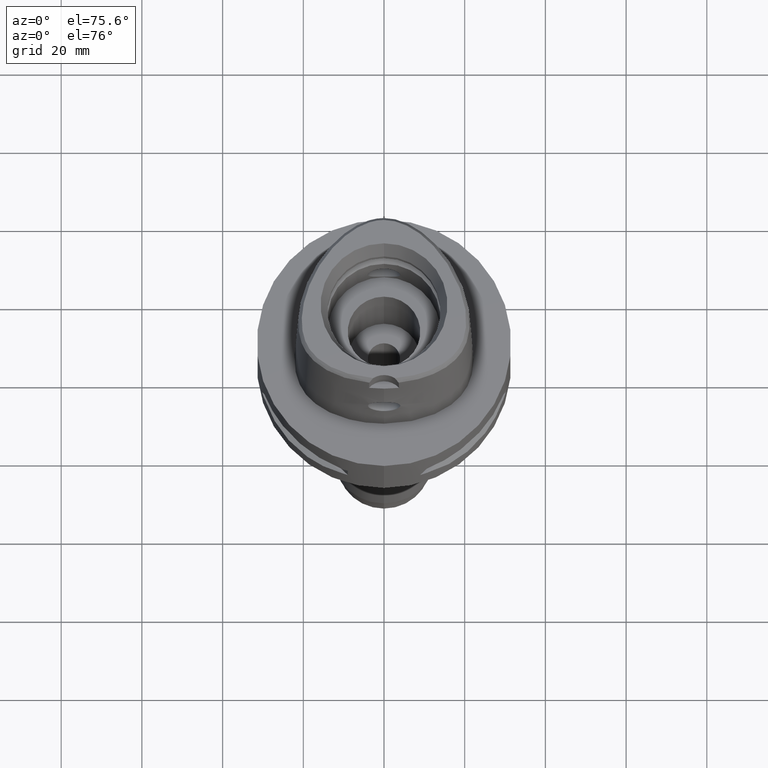
[diagram: clean part render]
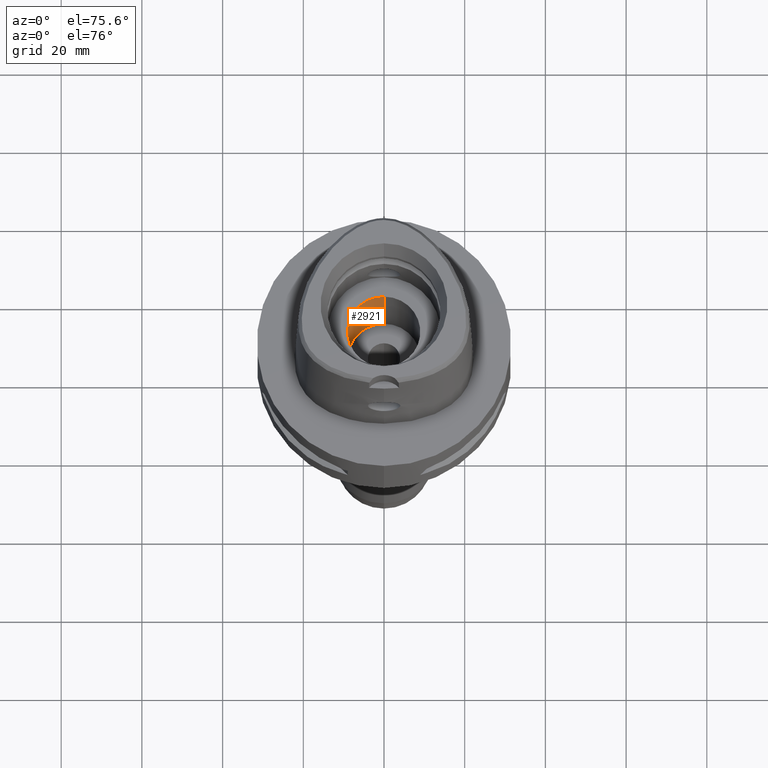
[diagram: same view with one face highlighted and labeled with its STEP entity id]
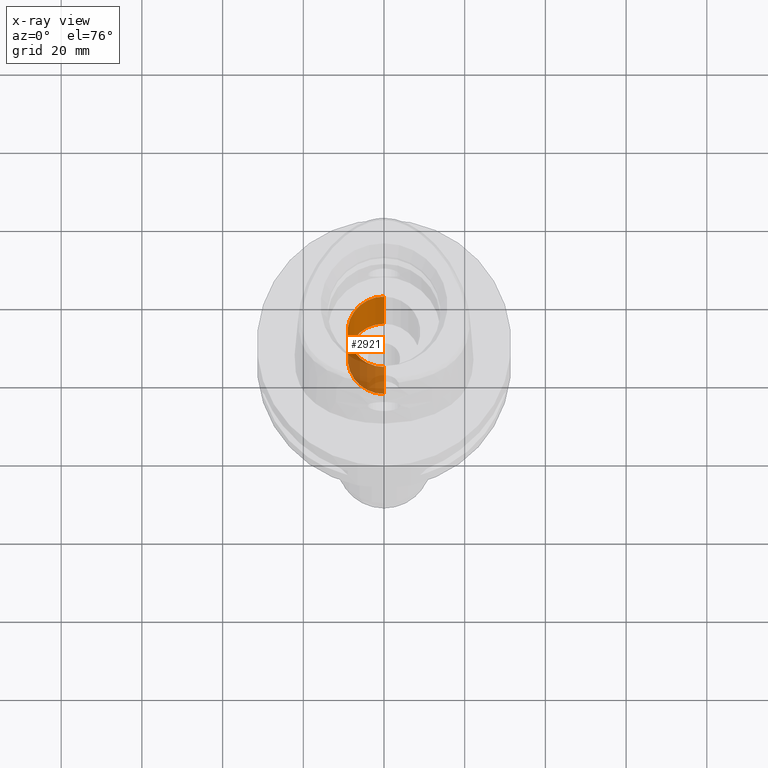
[diagram: x-ray of the same camera — body ghosted, the highlighted face saturated]
A machine part, auxiliary view. The second image highlights one B-rep face of the part: STEP entity #2921.
The next image is the same camera in x-ray: the body ghosted, the highlighted face saturated — about 46% of this face is hidden behind the body in this view.
In plain terms, the highlighted cylindrical surface (edge-blend (fillet) strip) has radius 9 mm, axis along (0, 0, -1).
Its self-contained STEP definition (entity closure, byte-faithful):
#892=CARTESIAN_POINT('',(0.E0,0.E0,-1.6E1));
#893=DIRECTION('',(0.E0,0.E0,-1.E0));
#894=DIRECTION('',(0.E0,-1.E0,0.E0));
#895=AXIS2_PLACEMENT_3D('',#892,#893,#894);
#924=DIRECTION('',(0.E0,0.E0,-1.E0));
#925=VECTOR('',#924,2.7E1);
#926=CARTESIAN_POINT('',(0.E0,-9.E0,1.1E1));
#927=LINE('',#926,#925);
#931=DIRECTION('',(0.E0,0.E0,1.E0));
#932=VECTOR('',#931,2.7E1);
#933=CARTESIAN_POINT('',(0.E0,9.E0,-1.6E1));
#934=LINE('',#933,#932);
#954=CARTESIAN_POINT('',(0.E0,0.E0,1.1E1));
#955=DIRECTION('',(0.E0,0.E0,1.E0));
#956=DIRECTION('',(0.E0,1.E0,0.E0));
#957=AXIS2_PLACEMENT_3D('',#954,#955,#956);
#1724=CARTESIAN_POINT('',(0.E0,-9.E0,-1.6E1));
#1725=CARTESIAN_POINT('',(0.E0,9.E0,-1.6E1));
#1726=VERTEX_POINT('',#1724);
#1727=VERTEX_POINT('',#1725);
#1728=CARTESIAN_POINT('',(0.E0,9.E0,1.1E1));
#1729=VERTEX_POINT('',#1728);
#1730=CARTESIAN_POINT('',(0.E0,-9.E0,1.1E1));
#1731=VERTEX_POINT('',#1730);
#2907=CARTESIAN_POINT('',(0.E0,0.E0,3.99E1));
#2908=DIRECTION('',(0.E0,0.E0,-1.E0));
#2909=DIRECTION('',(0.E0,-1.E0,0.E0));
#2910=AXIS2_PLACEMENT_3D('',#2907,#2908,#2909);
#2911=CYLINDRICAL_SURFACE('',#2910,9.E0);
#2913=ORIENTED_EDGE('',*,*,#2912,.F.);
#2914=ORIENTED_EDGE('',*,*,#2896,.F.);
#2916=ORIENTED_EDGE('',*,*,#2915,.F.);
#2918=ORIENTED_EDGE('',*,*,#2917,.F.);
#2919=EDGE_LOOP('',(#2913,#2914,#2916,#2918));
#2920=FACE_OUTER_BOUND('',#2919,.F.);
#896=CIRCLE('',#895,9.E0);
#958=CIRCLE('',#957,9.E0);
#2896=EDGE_CURVE('',#1726,#1727,#896,.T.);
#2912=EDGE_CURVE('',#1727,#1729,#934,.T.);
#2915=EDGE_CURVE('',#1731,#1726,#927,.T.);
#2917=EDGE_CURVE('',#1729,#1731,#958,.T.);
#2921=ADVANCED_FACE('',(#2920),#2911,.F.);